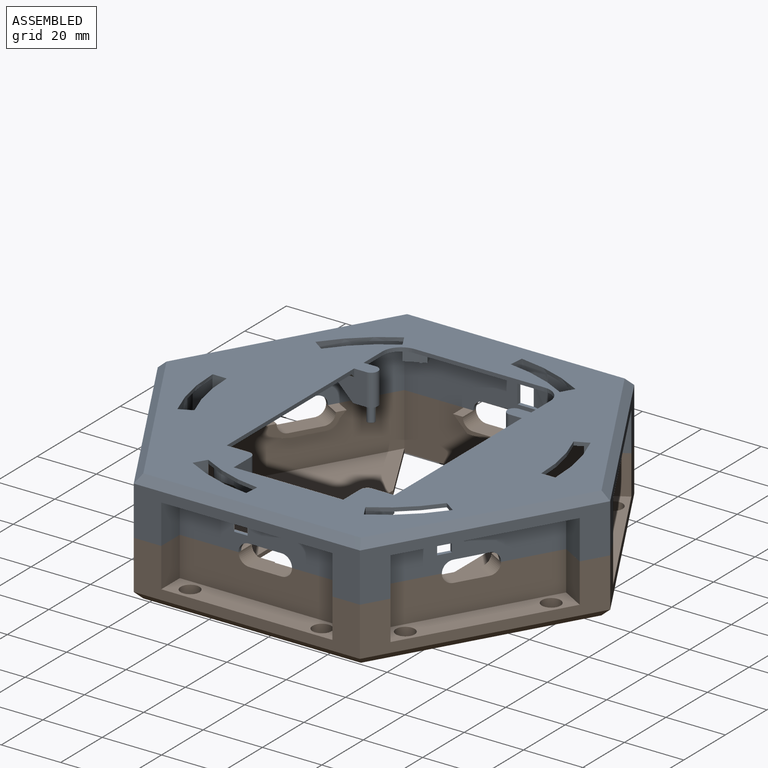
[diagram: assembled view]
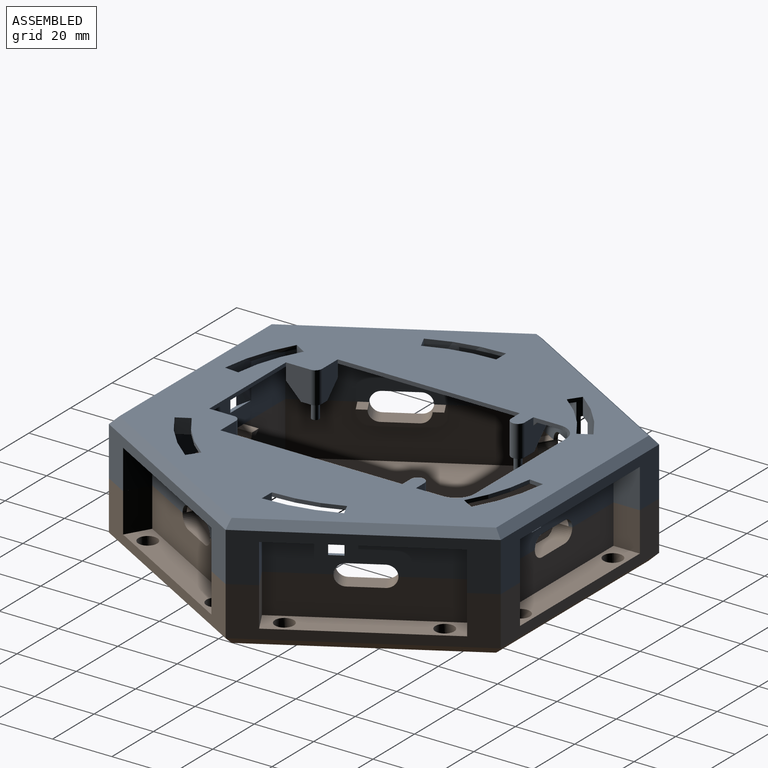
[diagram: assembled view, second angle]
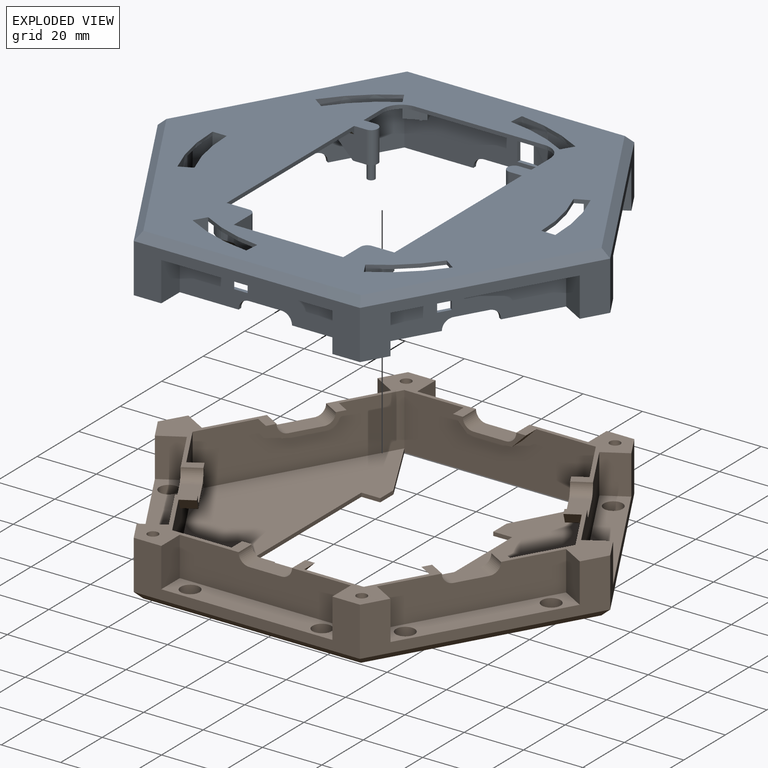
[diagram: exploded view]
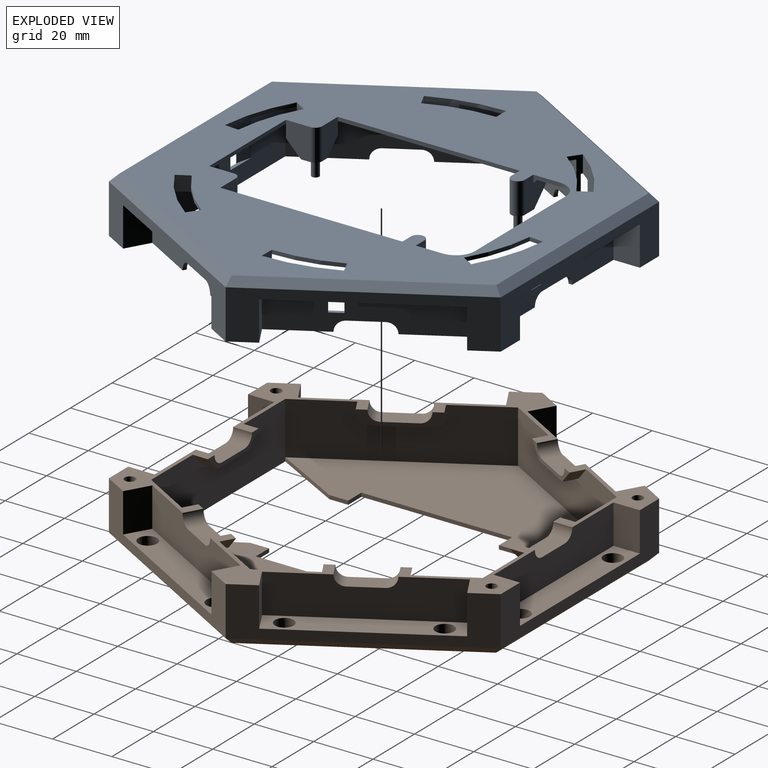
[diagram: exploded view, second angle]
ASSEMBLY  parts=2 mates=3
PART A: 228 faces, bbox 152.5x132.1x19.1 mm
  f0: plane 4.96x3.19mm, normal (0,0,-1), area 6.9mm2, adj f127,f128,f129,f221
  f1: plane 4.91x2.05mm, normal (0,0,-1), area 6.9mm2, adj f131,f132,f133,f218
  f2: plane 4.67x4.04mm, normal (0,0,-1), area 6.9mm2, adj f135,f136,f137,f215
  f3: plane 4.96x3.19mm, normal (0,0,-1), area 6.9mm2, adj f139,f140,f141,f212
  f4: plane 4.91x2.05mm, normal (0,0,-1), area 6.9mm2, adj f143,f144,f145,f209
  f5: plane 4.67x4.04mm, normal (0,0,-1), area 6.9mm2, adj f123,f124,f125,f206
  f6: plane 53.13x30.67mm, normal (-0.5,0.87,0), area 78.7mm2, adj f16,f21,f179,f184,f225
  f7: plane 7.86x4.54mm, normal (-0.5,0.87,0), area 12.3mm2, adj f16,f21,f167,f181,f224
  f8: plane 31.95x18.45mm, normal (0.87,0.5,0), area 46.9mm2, adj f16,f21,f174,f188
  f9: plane 53.13x30.67mm, normal (0.5,-0.87,0), area 78.7mm2, adj f16,f21,f169,f172,f227
  f10: plane 7.86x4.54mm, normal (0.5,-0.87,0), area 12.3mm2, adj f16,f21,f165,f170,f226
  f11: plane 41.53x23.35mm, normal (0,0,-1), area 173.6mm2, adj f25,f27,f33,f38,f64,f71,f72,f77
  f12: plane 35.97x30.29mm, normal (0,0,-1), area 173.6mm2, adj f24,f25,f27,f28,f37,f38,f58,f65
  f13: plane 35.97x30.29mm, normal (0,0,-1), area 179.7mm2, adj f24,f28,f36,f37,f51,f53,f59,f78
  f14: plane 41.53x23.35mm, normal (0,0,-1), area 173.6mm2, adj f23,f29,f35,f36,f45,f52,f53,f78
  f15: plane 35.97x30.29mm, normal (0,0,-1), area 173.6mm2, adj f22,f23,f26,f29,f34,f35,f39,f46
  f16: plane 129.05x111.76mm, normal (0,0,-1), area 4692.7mm2, adj f6,f7,f8,f9,f10,f26,f27,f28
  f17: plane 54.38x36.53mm, normal (0,0,-1), area 448.2mm2, adj f25,f38,f64,f65,f66,f68,f87,f88
  f18: plane 57.66x8.89mm, normal (0,0,-1), area 448.2mm2, adj f24,f37,f58,f59,f60,f62,f102,f103
  f19: plane 54.38x36.53mm, normal (0,0,-1), area 448.2mm2, adj f23,f35,f45,f46,f47,f49,f97,f98
  f20: plane 57.66x8.89mm, normal (0,0,-1), area 448.2mm2, adj f22,f34,f39,f40,f41,f43,f92,f93
  f21: plane 146.65x127mm, normal (0,0,1), area 8367.4mm2, adj f6,f7,f8,f9,f10,f87,f88,f89
  f22: plane 57.66x13.21mm, normal (0,-1,0), area 669.5mm2, adj f15,f20,f30,f39,f40,f92,f93,f96
  f23: plane 49.93x28.83mm, normal (-0.87,-0.5,0), area 669.5mm2, adj f14,f15,f19,f45,f46,f97,f98,f101
  f24: plane 57.66x13.21mm, normal (0,1,0), area 669.5mm2, adj f12,f13,f18,f58,f59,f102,f103,f106
  f25: plane 49.93x28.83mm, normal (0.87,0.5,0), area 669.5mm2, adj f11,f12,f17,f64,f65,f87,f88,f91
  f26: plane 64.52x17.78mm, normal (0,1,0), area 968.3mm2, adj f15,f16,f29,f30,f77,f92,f93,f96
  f27: plane 55.88x32.26mm, normal (-0.87,-0.5,0), area 968.3mm2, adj f11,f12,f16,f28,f77,f87,f88,f91
  f28: plane 64.52x17.78mm, normal (0,-1,0), area 968.3mm2, adj f12,f13,f16,f27,f78,f102,f103,f106
  f29: plane 55.88x32.26mm, normal (0.87,0.5,0), area 968.3mm2, adj f14,f15,f16,f26,f78,f97,f98,f101
  f30: plane 35.97x30.29mm, normal (0,0,-1), area 179.7mm2, adj f22,f26,f33,f34,f40,f70,f72,f77
  f31: plane 54.38x36.53mm, normal (0,0,-1), area 448.2mm2, adj f33,f70,f71,f72,f73,f75,f107,f108
  f32: plane 54.38x36.53mm, normal (0,0,-1), area 448.2mm2, adj f36,f51,f52,f53,f54,f56,f112,f113
  f33: plane 66.04x38.13mm, normal (0.87,-0.5,0), area 497.4mm2, adj f11,f30,f31,f34,f38,f70,f71,f119
  f34: plane 76.26x16.51mm, normal (0,-1,0), area 497.4mm2, adj f15,f20,f30,f33,f35,f39,f40,f121
  f35: plane 66.04x38.13mm, normal (-0.87,-0.5,0), area 497.4mm2, adj f14,f15,f19,f34,f36,f45,f46,f122
  f36: plane 66.04x38.13mm, normal (-0.87,0.5,0), area 497.4mm2, adj f13,f14,f32,f35,f37,f51,f52,f120
  f37: plane 76.26x16.51mm, normal (0,1,0), area 497.4mm2, adj f12,f13,f18,f36,f38,f58,f59,f118
  f38: plane 66.04x38.13mm, normal (0.87,0.5,0), area 497.4mm2, adj f11,f12,f17,f33,f37,f64,f65,f117
  f39: plane 13.21x8.89mm, normal (1,0,0), area 117.4mm2, adj f15,f20,f22,f34
  f40: plane 13.21x8.89mm, normal (-1,0,0), area 117.4mm2, adj f20,f22,f30,f34
  f41: cylinder r=3.16mm len=6.32mm, axis (0,0,1), area 63.1mm2, adj f20,f42
  f42: plane 6.32x6.32mm, normal (0,0,-1), area 31.4mm2, adj f41
  f43: cylinder r=3.16mm len=6.32mm, axis (0,0,1), area 63.1mm2, adj f20,f44
  f44: plane 6.32x6.32mm, normal (0,0,-1), area 31.4mm2, adj f43
  f45: plane 13.21x7.7mm, normal (0.5,-0.87,0), area 117.4mm2, adj f14,f19,f23,f35
  f46: plane 13.21x7.7mm, normal (-0.5,0.87,0), area 117.4mm2, adj f15,f19,f23,f35
  f47: cylinder r=3.16mm len=6.32mm, axis (0,0,1), area 63.1mm2, adj f19,f48
  f48: plane 6.32x6.32mm, normal (0,0,-1), area 31.4mm2, adj f47
  f49: cylinder r=3.16mm len=6.32mm, axis (0,0,1), area 63.1mm2, adj f19,f50
  f50: plane 6.32x6.32mm, normal (0,0,-1), area 31.4mm2, adj f49
  f51: plane 13.21x7.7mm, normal (-0.5,-0.87,0), area 117.4mm2, adj f13,f32,f36,f53
  f52: plane 13.21x7.7mm, normal (0.5,0.87,0), area 117.4mm2, adj f14,f32,f36,f53
  f53: plane 49.93x28.83mm, normal (-0.87,0.5,0), area 669.5mm2, adj f13,f14,f32,f51,f52,f112,f113,f116
  f54: cylinder r=3.16mm len=6.32mm, axis (0,0,1), area 63.1mm2, adj f32,f55
  f55: plane 6.32x6.32mm, normal (0,0,-1), area 31.4mm2, adj f54
  f56: cylinder r=3.16mm len=6.32mm, axis (0,0,1), area 63.1mm2, adj f32,f57
  f57: plane 6.32x6.32mm, normal (0,0,-1), area 31.4mm2, adj f56
  f58: plane 13.21x8.89mm, normal (-1,0,0), area 117.4mm2, adj f12,f18,f24,f37
  f59: plane 13.21x8.89mm, normal (1,0,0), area 117.4mm2, adj f13,f18,f24,f37
  f60: cylinder r=3.16mm len=6.32mm, axis (0,0,1), area 63.1mm2, adj f18,f61
  f61: plane 6.32x6.32mm, normal (0,0,-1), area 31.4mm2, adj f60
  f62: cylinder r=3.16mm len=6.32mm, axis (0,0,1), area 63.1mm2, adj f18,f63
  f63: plane 6.32x6.32mm, normal (0,0,-1), area 31.4mm2, adj f62
  f64: plane 13.21x7.7mm, normal (-0.5,0.87,0), area 117.4mm2, adj f11,f17,f25,f38
  f65: plane 13.21x7.7mm, normal (0.5,-0.87,0), area 117.4mm2, adj f12,f17,f25,f38
  f66: cylinder r=3.16mm len=6.32mm, axis (0,0,1), area 63.1mm2, adj f17,f67
  f67: plane 6.32x6.32mm, normal (0,0,-1), area 31.4mm2, adj f66
  f68: cylinder r=3.16mm len=6.32mm, axis (0,0,1), area 63.1mm2, adj f17,f69
  f69: plane 6.32x6.32mm, normal (0,0,-1), area 31.4mm2, adj f68
  f70: plane 13.21x7.7mm, normal (0.5,0.87,0), area 117.4mm2, adj f30,f31,f33,f72
  f71: plane 13.21x7.7mm, normal (-0.5,-0.87,0), area 117.4mm2, adj f11,f31,f33,f72
  f72: plane 49.93x28.83mm, normal (0.87,-0.5,0), area 669.5mm2, adj f11,f30,f31,f70,f71,f107,f108,f111
  f73: cylinder r=3.16mm len=6.32mm, axis (0,0,1), area 63.1mm2, adj f31,f74
  f74: plane 6.32x6.32mm, normal (0,0,-1), area 31.4mm2, adj f73
  f75: cylinder r=3.16mm len=6.32mm, axis (0,0,1), area 63.1mm2, adj f31,f76
  f76: plane 6.32x6.32mm, normal (0,0,-1), area 31.4mm2, adj f75
  f77: plane 55.88x32.26mm, normal (-0.87,0.5,0), area 968.3mm2, adj f11,f16,f26,f27,f30,f107,f108,f111
  f78: plane 55.88x32.26mm, normal (0.87,-0.5,0), area 968.3mm2, adj f13,f14,f16,f28,f29,f112,f113,f116
  f79: cylinder r=1.4mm len=12.7mm, axis (0,0,-1), area 111.5mm2, adj f14,f80
  f80: plane 2.79x2.79mm, normal (0,0,-1), area 6.1mm2, adj f79
  f81: cylinder r=1.4mm len=12.7mm, axis (0,0,-1), area 111.5mm2, adj f11,f82
  f82: plane 2.79x2.79mm, normal (0,0,-1), area 6.1mm2, adj f81
  f83: cylinder r=1.4mm len=12.7mm, axis (0,0,-1), area 111.5mm2, adj f12,f84
  f84: plane 2.79x2.79mm, normal (0,0,-1), area 6.1mm2, adj f83
  f85: cylinder r=1.4mm len=12.7mm, axis (0,0,-1), area 111.5mm2, adj f15,f86
  f86: plane 2.79x2.79mm, normal (0,0,-1), area 6.1mm2, adj f85
  f87: plane 13.21x4.32mm, normal (0.42,-0.91,0), area 24.2mm2, adj f16,f17,f21,f25,f27,f88,f90,f91
  f88: cylinder r=58.1mm len=24.2mm, axis (0,0,1), area 119mm2, adj f16,f17,f21,f25,f27,f87,f89,f91
  f89: plane 5.08x4.76mm, normal (0.01,1,0), area 24.2mm2, adj f21,f88,f90,f131,f132,f134
  f90: cylinder r=53.34mm len=22.14mm, axis (0,0,1), area 28.9mm2, adj f16,f21,f87,f89
  f91: plane 9.26x5.04mm, normal (0,0,1), area 9.5mm2, adj f25,f27,f87,f88
  f92: plane 13.21x4.75mm, normal (-1,0.09,0), area 24.2mm2, adj f16,f20,f21,f22,f26,f93,f95,f96
  f93: cylinder r=58.1mm len=23.48mm, axis (0,0,1), area 119mm2, adj f16,f20,f21,f22,f26,f92,f94,f96
  f94: plane 5.08x4.1mm, normal (0.86,-0.51,0), area 24.2mm2, adj f21,f93,f95,f123,f124,f126
  f95: cylinder r=53.34mm len=21.48mm, axis (0,0,1), area 28.9mm2, adj f16,f21,f92,f94
  f96: plane 10.07x1.27mm, normal (0,0,1), area 9.5mm2, adj f22,f26,f92,f93
  f97: plane 13.21x4.32mm, normal (-0.42,0.91,0), area 24.2mm2, adj f16,f19,f21,f23,f29,f98,f100,f101
  f98: cylinder r=58.1mm len=24.2mm, axis (0,0,1), area 119mm2, adj f16,f19,f21,f23,f29,f97,f99,f101
  f99: plane 5.08x4.76mm, normal (-0.01,-1,0), area 24.2mm2, adj f21,f98,f100,f143,f144,f146
  f100: cylinder r=53.34mm len=22.14mm, axis (0,0,1), area 28.9mm2, adj f16,f21,f97,f99
  f101: plane 9.26x5.04mm, normal (0,0,1), area 9.5mm2, adj f23,f29,f97,f98
  f102: plane 13.21x4.75mm, normal (1,-0.09,0), area 24.2mm2, adj f16,f18,f21,f24,f28,f103,f105,f106
  f103: cylinder r=58.1mm len=23.48mm, axis (0,0,1), area 119mm2, adj f16,f18,f21,f24,f28,f102,f104,f106
  f104: plane 5.08x4.1mm, normal (-0.86,0.51,0), area 24.2mm2, adj f21,f103,f105,f135,f136,f138
  f105: cylinder r=53.34mm len=21.48mm, axis (0,0,1), area 28.9mm2, adj f16,f21,f102,f104
  f106: plane 10.07x1.27mm, normal (0,0,1), area 9.5mm2, adj f24,f28,f102,f103
  f107: cylinder r=58.1mm len=18.43mm, axis (0,0,1), area 119mm2, adj f16,f21,f31,f72,f77,f108,f109,f111
  f108: plane 13.21x3.9mm, normal (-0.57,-0.82,0), area 24.2mm2, adj f16,f21,f31,f72,f77,f107,f110,f111
  f109: plane 5.08x4.15mm, normal (0.87,0.49,0), area 24.2mm2, adj f21,f107,f110,f127,f128,f130
  f110: cylinder r=53.34mm len=16.87mm, axis (0,0,1), area 28.9mm2, adj f16,f21,f108,f109
  f111: plane 8.72x6.08mm, normal (0,0,1), area 9.5mm2, adj f72,f77,f107,f108
  f112: cylinder r=58.1mm len=18.43mm, axis (0,0,1), area 119mm2, adj f16,f21,f32,f53,f78,f113,f114,f116
  f113: plane 13.21x3.9mm, normal (0.57,0.82,0), area 24.2mm2, adj f16,f21,f32,f53,f78,f112,f115,f116
  f114: plane 5.08x4.15mm, normal (-0.87,-0.49,0), area 24.2mm2, adj f21,f112,f115,f139,f140,f142
  f115: cylinder r=53.34mm len=16.87mm, axis (0,0,1), area 28.9mm2, adj f16,f21,f113,f114
  f116: plane 8.72x6.08mm, normal (0,0,1), area 9.5mm2, adj f53,f78,f112,f113
  f117: plane 66.04x39.59mm, normal (0.61,0.35,0.71), area 268.7mm2, adj f21,f38,f118,f119
  f118: plane 76.26x2.54mm, normal (0,0.71,0.71), area 268.7mm2, adj f21,f37,f117,f120
  f119: plane 66.04x39.59mm, normal (0.61,-0.35,0.71), area 268.7mm2, adj f21,f33,f117,f121
  f120: plane 66.04x39.59mm, normal (-0.61,0.35,0.71), area 268.7mm2, adj f21,f36,f118,f122
  f121: plane 76.26x2.54mm, normal (0,-0.71,0.71), area 268.7mm2, adj f21,f34,f119,f122
  f122: plane 66.04x39.59mm, normal (-0.61,-0.35,0.71), area 268.7mm2, adj f21,f35,f120,f121
  f123: cylinder r=58.1mm len=6.28mm, axis (0,0,1), area 29.2mm2, adj f5,f16,f94,f125,f126,f206,f207,f208
  f124: cylinder r=53.34mm len=5.77mm, axis (0,0,1), area 26.8mm2, adj f5,f16,f94,f125,f126,f206,f207,f208
  f125: plane 3.81x3.75mm, normal (-0.79,0.62,0), area 18.1mm2, adj f5,f16,f123,f124
  f126: plane 6.67x6.64mm, normal (0,0,-1), area 23.2mm2, adj f94,f123,f124,f207
  f127: cylinder r=58.1mm len=6.85mm, axis (0,0,1), area 29.2mm2, adj f0,f16,f109,f129,f130,f221,f222,f223
  f128: cylinder r=53.34mm len=6.28mm, axis (0,0,1), area 26.8mm2, adj f0,f16,f109,f129,f130,f221,f222,f223
  f129: plane 4.42x3.81mm, normal (-0.93,-0.37,0), area 18.1mm2, adj f0,f16,f127,f128
  f130: plane 6.49x6.45mm, normal (0,0,-1), area 23.2mm2, adj f109,f127,f128,f222
  f131: cylinder r=58.1mm len=7.58mm, axis (0,0,1), area 29.2mm2, adj f1,f16,f89,f133,f134,f218,f219,f220
  f132: cylinder r=53.34mm len=6.96mm, axis (0,0,1), area 26.8mm2, adj f1,f16,f89,f133,f134,f218,f219,f220
  f133: plane 4.72x3.81mm, normal (-0.14,-0.99,0), area 18.1mm2, adj f1,f16,f131,f132
  f134: plane 5.1x5.01mm, normal (0,0,-1), area 23.2mm2, adj f89,f131,f132,f219
  f135: cylinder r=58.1mm len=6.28mm, axis (0,0,1), area 29.2mm2, adj f2,f16,f104,f137,f138,f215,f216,f217
  f136: cylinder r=53.34mm len=5.77mm, axis (0,0,1), area 26.8mm2, adj f2,f16,f104,f137,f138,f215,f216,f217
  f137: plane 3.81x3.75mm, normal (0.79,-0.62,0), area 18.1mm2, adj f2,f16,f135,f136
  f138: plane 6.67x6.64mm, normal (0,0,-1), area 23.2mm2, adj f104,f135,f136,f216
  f139: cylinder r=58.1mm len=6.85mm, axis (0,0,1), area 29.2mm2, adj f3,f16,f114,f141,f142,f212,f213,f214
  f140: cylinder r=53.34mm len=6.28mm, axis (0,0,1), area 26.8mm2, adj f3,f16,f114,f141,f142,f212,f213,f214
  f141: plane 4.42x3.81mm, normal (0.93,0.37,0), area 18.1mm2, adj f3,f16,f139,f140
  f142: plane 6.49x6.45mm, normal (0,0,-1), area 23.2mm2, adj f114,f139,f140,f213
  f143: cylinder r=58.1mm len=7.58mm, axis (0,0,1), area 29.2mm2, adj f4,f16,f99,f145,f146,f209,f210,f211
  f144: cylinder r=53.34mm len=6.96mm, axis (0,0,1), area 26.8mm2, adj f4,f16,f99,f145,f146,f209,f210,f211
  f145: plane 4.72x3.81mm, normal (0.14,0.99,0), area 18.1mm2, adj f4,f16,f143,f144
  f146: plane 5.1x5.01mm, normal (0,0,-1), area 23.2mm2, adj f99,f143,f144,f210
  f147: plane 10.92x1.27mm, normal (0,0,-1), area 13.9mm2, adj f22,f26,f148,f149
  f148: cylinder r=3.56mm len=3.56mm, axis (0,-1,0), area 7.1mm2, adj f22,f26,f30,f147
  f149: cylinder r=3.56mm len=3.56mm, axis (0,-1,0), area 7.1mm2, adj f15,f22,f26,f147
  f150: plane 10.09x6.56mm, normal (0,0,-1), area 13.9mm2, adj f23,f29,f151,f152
  f151: cylinder r=3.56mm len=3.71mm, axis (-0.87,-0.5,0), area 7.1mm2, adj f15,f23,f29,f150
  f152: cylinder r=3.56mm len=3.71mm, axis (-0.87,-0.5,0), area 7.1mm2, adj f14,f23,f29,f150
  f153: cylinder r=3.56mm len=3.71mm, axis (-0.87,0.5,0), area 7.1mm2, adj f14,f53,f78,f155
  f154: cylinder r=3.56mm len=3.71mm, axis (-0.87,0.5,0), area 7.1mm2, adj f13,f53,f78,f155
  f155: plane 10.09x6.56mm, normal (0,0,-1), area 13.9mm2, adj f53,f78,f153,f154
  f156: plane 10.92x1.27mm, normal (0,0,-1), area 13.9mm2, adj f24,f28,f157,f158
  f157: cylinder r=3.56mm len=3.56mm, axis (0,1,0), area 7.1mm2, adj f13,f24,f28,f156
  f158: cylinder r=3.56mm len=3.56mm, axis (0,1,0), area 7.1mm2, adj f12,f24,f28,f156
  f159: plane 10.09x6.56mm, normal (0,0,-1), area 13.9mm2, adj f25,f27,f160,f161
  f160: cylinder r=3.56mm len=3.71mm, axis (0.87,0.5,0), area 7.1mm2, adj f12,f25,f27,f159
  f161: cylinder r=3.56mm len=3.71mm, axis (0.87,0.5,0), area 7.1mm2, adj f11,f25,f27,f159
  f162: cylinder r=3.56mm len=3.71mm, axis (0.87,-0.5,0), area 7.1mm2, adj f11,f72,f77,f164
  f163: cylinder r=3.56mm len=3.71mm, axis (0.87,-0.5,0), area 7.1mm2, adj f30,f72,f77,f164
  f164: plane 10.09x6.56mm, normal (0,0,-1), area 13.9mm2, adj f72,f77,f162,f163
  f165: cylinder r=6.35mm len=8.67mm, axis (0,0,1), area 12.7mm2, adj f10,f16,f21,f166
  f166: plane 37.95x21.91mm, normal (-0.87,-0.5,0), area 55.6mm2, adj f16,f21,f165,f167
  f167: cylinder r=6.35mm len=8.67mm, axis (0,0,1), area 12.7mm2, adj f7,f16,f21,f166
  f168: cylinder r=2.29mm len=10.67mm, axis (0,0,1), area 76.6mm2, adj f21,f169,f170,f171
  f169: plane 10.94x10.67mm, normal (-0.87,-0.5,0), area 80.2mm2, adj f9,f21,f168,f171,f191,f227
  f170: plane 10.94x10.67mm, normal (0.87,0.5,0), area 80.2mm2, adj f10,f21,f168,f171,f191,f226
  f171: plane 7.33x6.52mm, normal (0,0,-1), area 23.8mm2, adj f168,f169,f170,f191,f194
  f172: plane 10.67x6.52mm, normal (0.87,0.5,0), area 67.4mm2, adj f9,f21,f173,f177,f178,f202
  f173: cylinder r=2.29mm len=10.67mm, axis (0,0,1), area 38.3mm2, adj f21,f172,f174,f178
  f174: plane 10.67x7.2mm, normal (0.5,-0.87,0), area 75.8mm2, adj f8,f21,f173,f175,f178,f200
  f175: plane 4.32x3mm, normal (-0.87,-0.5,0), area 14.9mm2, adj f16,f174,f176,f200
  f176: cylinder r=6.35mm len=8.67mm, axis (0,0,1), area 43.1mm2, adj f16,f175,f177,f201
  f177: plane 4.32x3.68mm, normal (-0.5,0.87,0), area 18.3mm2, adj f16,f172,f176,f202
  f178: plane 6.86x5.84mm, normal (0,0,-1), area 19.6mm2, adj f172,f173,f174,f198,f200,f201,f202
  f179: plane 10.94x10.67mm, normal (-0.87,-0.5,0), area 80.2mm2, adj f6,f21,f180,f182,f190,f225
  f180: cylinder r=2.29mm len=10.67mm, axis (0,0,1), area 76.6mm2, adj f21,f179,f181,f182
  f181: plane 10.94x10.67mm, normal (0.87,0.5,0), area 80.2mm2, adj f7,f21,f180,f182,f190,f224
  f182: plane 7.33x6.52mm, normal (0,0,-1), area 23.8mm2, adj f179,f180,f181,f190,f192
  f183: cylinder r=2.29mm len=10.67mm, axis (0,0,1), area 38.3mm2, adj f21,f184,f188,f189
  f184: plane 10.67x6.52mm, normal (0.87,0.5,0), area 67.4mm2, adj f6,f21,f183,f185,f189,f205
  f185: plane 4.32x3.68mm, normal (0.5,-0.87,0), area 18.3mm2, adj f16,f184,f186,f205
  f186: cylinder r=6.35mm len=8.67mm, axis (0,0,1), area 43.1mm2, adj f16,f185,f187,f204
  f187: plane 4.32x3mm, normal (-0.87,-0.5,0), area 14.9mm2, adj f16,f186,f188,f203
  f188: plane 10.67x7.2mm, normal (-0.5,0.87,0), area 75.8mm2, adj f8,f21,f183,f187,f189,f203
  f189: plane 7.14x5.55mm, normal (0,0,-1), area 19.6mm2, adj f183,f184,f188,f196,f203,f204,f205
  f190: plane 11.06x9.76mm, normal (0.35,-0.61,-0.71), area 63.1mm2, adj f16,f179,f181,f182,f224,f225
  f191: plane 11.06x9.76mm, normal (-0.35,0.61,-0.71), area 63mm2, adj f16,f169,f170,f171,f226,f227
  f192: cylinder r=1.27mm len=5.08mm, axis (0,0,1), area 40.5mm2, adj f182,f193
  f193: plane 2.54x2.54mm, normal (0,0,-1), area 5.1mm2, adj f192
  f194: cylinder r=1.27mm len=5.08mm, axis (0,0,1), area 40.5mm2, adj f171,f195
  f195: plane 2.54x2.54mm, normal (0,0,-1), area 5.1mm2, adj f194
  f196: cylinder r=1.27mm len=5.08mm, axis (0,0,1), area 40.5mm2, adj f189,f197
  f197: plane 2.54x2.54mm, normal (0,0,-1), area 5.1mm2, adj f196
  f198: cylinder r=1.27mm len=5.08mm, axis (0,0,1), area 40.5mm2, adj f178,f199
  f199: plane 2.54x2.54mm, normal (0,0,-1), area 5.1mm2, adj f198
  f200: plane 6.13x5.54mm, normal (-0.61,-0.35,-0.71), area 24.9mm2, adj f174,f175,f178,f201
  f201: cone r=1.27mm half-angle=45deg, axis (0,0,1), area 43mm2, adj f176,f178,f200,f202
  f202: plane 6.52x6.22mm, normal (-0.35,0.61,-0.71), area 30.5mm2, adj f172,f177,f178,f201
  f203: plane 6.13x5.54mm, normal (-0.61,-0.35,-0.71), area 24.9mm2, adj f187,f188,f189,f204
  f204: cone r=1.27mm half-angle=45deg, axis (0,0,1), area 43mm2, adj f186,f189,f203,f205
  f205: plane 6.52x6.22mm, normal (0.35,-0.61,-0.71), area 30.5mm2, adj f184,f185,f189,f204
  f206: plane 3.83x2.83mm, normal (-0.8,0.59,0), area 1.2mm2, adj f5,f123,f124,f208
  f207: plane 3.88x2.77mm, normal (0.81,-0.58,0), area 1.2mm2, adj f123,f124,f126,f208
  f208: plane 4.42x3.59mm, normal (0,0,-1), area 4.6mm2, adj f123,f124,f206,f207
  f209: plane 4.73x0.54mm, normal (0.11,0.99,0), area 1.2mm2, adj f4,f143,f144,f211
  f210: plane 4.74x0.46mm, normal (-0.1,-1,0), area 1.2mm2, adj f143,f144,f146,f211
  f211: plane 4.84x1.47mm, normal (0,0,-1), area 4.6mm2, adj f143,f144,f209,f210
  f212: plane 4.37x1.9mm, normal (0.92,0.4,0), area 1.2mm2, adj f3,f139,f140,f214
  f213: plane 4.33x1.98mm, normal (-0.91,-0.41,0), area 1.2mm2, adj f139,f140,f142,f214
  f214: plane 4.75x2.83mm, normal (0,0,-1), area 4.6mm2, adj f139,f140,f212,f213
  f215: plane 3.83x2.83mm, normal (0.8,-0.59,0), area 1.2mm2, adj f2,f135,f136,f217
  f216: plane 3.88x2.77mm, normal (-0.81,0.58,0), area 1.2mm2, adj f135,f136,f138,f217
  f217: plane 4.42x3.59mm, normal (0,0,-1), area 4.6mm2, adj f135,f136,f215,f216
  f218: plane 4.73x0.54mm, normal (-0.11,-0.99,0), area 1.2mm2, adj f1,f131,f132,f220
  f219: plane 4.74x0.46mm, normal (0.1,1,0), area 1.2mm2, adj f131,f132,f134,f220
  f220: plane 4.84x1.47mm, normal (0,0,-1), area 4.6mm2, adj f131,f132,f218,f219
  f221: plane 4.37x1.9mm, normal (-0.92,-0.4,0), area 1.2mm2, adj f0,f127,f128,f223
  f222: plane 4.33x1.98mm, normal (0.91,0.41,0), area 1.2mm2, adj f127,f128,f130,f223
  f223: plane 4.75x2.83mm, normal (0,0,-1), area 4.6mm2, adj f127,f128,f221,f222
  f224: plane 8.47x5.99mm, normal (0.61,0.35,-0.71), area 16.4mm2, adj f7,f16,f181,f190
  f225: plane 9.1x5.35mm, normal (-0.61,-0.35,-0.71), area 16.4mm2, adj f6,f16,f179,f190
  f226: plane 9.1x5.35mm, normal (0.61,0.35,-0.71), area 16.4mm2, adj f10,f16,f170,f191
  f227: plane 8.47x5.99mm, normal (-0.61,-0.35,-0.71), area 16.4mm2, adj f9,f16,f169,f191
PART B: 135 faces, bbox 152.5x132.1x19.1 mm
  f0: plane 6.35x1.27mm, normal (1,0,0), area 8.1mm2, adj f3,f4,f102,f132
  f1: plane 6.35x1.27mm, normal (-1,0,0), area 8.1mm2, adj f2,f3,f103,f134
  f2: plane 111.76x45.47mm, normal (0,0,1), area 2638mm2, adj f1,f86,f87,f103,f104,f105,f106,f131
  f3: plane 146.65x127mm, normal (0,0,-1), area 8387.6mm2, adj f0,f1,f85,f88,f89,f90,f91,f92
  f4: plane 111.76x45.47mm, normal (0,0,1), area 2638mm2, adj f0,f83,f84,f99,f100,f101,f102,f132
  f5: plane 35.97x32.83mm, normal (0,0,1), area 203mm2, adj f25,f27,f59,f60,f74,f76,f77,f82
  f6: plane 35.97x32.83mm, normal (0,0,1), area 203mm2, adj f22,f24,f71,f73,f74,f75,f77,f78
  f7: plane 41.53x27.75mm, normal (0,0,1), area 212.9mm2, adj f19,f21,f68,f70,f71,f72,f78,f79
  f8: plane 35.97x32.83mm, normal (0,0,1), area 203mm2, adj f16,f18,f65,f67,f68,f69,f79,f80
  f9: plane 35.97x32.83mm, normal (0,0,1), area 203mm2, adj f13,f14,f62,f64,f65,f66,f80,f81
  f10: plane 41.53x27.75mm, normal (0,0,1), area 212.9mm2, adj f12,f28,f59,f61,f62,f63,f81,f82
  f11: plane 12.63x10.96mm, normal (0,0,1), area 69.4mm2, adj f12,f13,f62,f118
  f12: cylinder r=3.56mm len=7.28mm, axis (-0.87,-0.5,0), area 35.5mm2, adj f10,f11,f62,f118
  f13: cylinder r=3.56mm len=7.28mm, axis (-0.87,-0.5,0), area 35.5mm2, adj f9,f11,f62,f118
  f14: cylinder r=3.56mm len=6.35mm, axis (0,-1,0), area 35.5mm2, adj f9,f15,f65,f122
  f15: plane 10.92x6.35mm, normal (0,0,1), area 69.4mm2, adj f14,f16,f65,f122
  f16: cylinder r=3.56mm len=6.35mm, axis (0,-1,0), area 35.5mm2, adj f8,f15,f65,f122
  f17: plane 12.63x10.96mm, normal (0,0,1), area 69.4mm2, adj f18,f19,f68,f126
  f18: cylinder r=3.56mm len=7.28mm, axis (0.87,-0.5,0), area 35.5mm2, adj f8,f17,f68,f126
  f19: cylinder r=3.56mm len=7.28mm, axis (0.87,-0.5,0), area 35.5mm2, adj f7,f17,f68,f126
  f20: plane 12.63x10.96mm, normal (0,0,1), area 69.4mm2, adj f21,f22,f71,f130
  f21: cylinder r=3.56mm len=7.28mm, axis (0.87,0.5,0), area 35.5mm2, adj f7,f20,f71,f130
  f22: cylinder r=3.56mm len=7.28mm, axis (0.87,0.5,0), area 35.5mm2, adj f6,f20,f71,f130
  f23: plane 10.92x6.35mm, normal (0,0,1), area 69.4mm2, adj f24,f25,f74,f110
  f24: cylinder r=3.56mm len=6.35mm, axis (0,1,0), area 35.5mm2, adj f6,f23,f74,f110
  f25: cylinder r=3.56mm len=6.35mm, axis (0,1,0), area 35.5mm2, adj f5,f23,f74,f110
  f26: plane 12.63x10.96mm, normal (0,0,1), area 69.4mm2, adj f27,f28,f59,f114
  f27: cylinder r=3.56mm len=7.28mm, axis (-0.87,0.5,0), area 35.5mm2, adj f5,f26,f59,f114
  f28: cylinder r=3.56mm len=7.28mm, axis (-0.87,0.5,0), area 35.5mm2, adj f10,f26,f59,f114
  f29: plane 6.32x6.32mm, normal (0,0,1), area 31.4mm2, adj f41
  f30: plane 6.32x6.32mm, normal (0,0,1), area 31.4mm2, adj f42
  f31: plane 6.32x6.32mm, normal (0,0,1), area 31.4mm2, adj f43
  f32: plane 6.32x6.32mm, normal (0,0,1), area 31.4mm2, adj f44
  f33: plane 6.32x6.32mm, normal (0,0,1), area 31.4mm2, adj f45
  f34: plane 6.32x6.32mm, normal (0,0,1), area 31.4mm2, adj f46
  f35: plane 6.32x6.32mm, normal (0,0,1), area 31.4mm2, adj f47
  f36: plane 6.32x6.32mm, normal (0,0,1), area 31.4mm2, adj f48
  f37: plane 6.32x6.32mm, normal (0,0,1), area 31.4mm2, adj f49
  f38: plane 6.32x6.32mm, normal (0,0,1), area 31.4mm2, adj f50
  f39: plane 6.32x6.32mm, normal (0,0,1), area 31.4mm2, adj f51
  f40: plane 6.32x6.32mm, normal (0,0,1), area 31.4mm2, adj f52
  f41: cylinder r=3.16mm len=6.32mm, axis (0,0,1), area 63.1mm2, adj f29,f53
  f42: cylinder r=3.16mm len=6.32mm, axis (0,0,1), area 63.1mm2, adj f30,f53
  f43: cylinder r=3.16mm len=6.32mm, axis (0,0,1), area 63.1mm2, adj f31,f54
  f44: cylinder r=3.16mm len=6.32mm, axis (0,0,1), area 63.1mm2, adj f32,f54
  f45: cylinder r=3.16mm len=6.32mm, axis (0,0,1), area 63.1mm2, adj f33,f55
  f46: cylinder r=3.16mm len=6.32mm, axis (0,0,1), area 63.1mm2, adj f34,f55
  f47: cylinder r=3.16mm len=6.32mm, axis (0,0,1), area 63.1mm2, adj f35,f56
  f48: cylinder r=3.16mm len=6.32mm, axis (0,0,1), area 63.1mm2, adj f36,f56
  f49: cylinder r=3.16mm len=6.32mm, axis (0,0,1), area 63.1mm2, adj f37,f57
  f50: cylinder r=3.16mm len=6.32mm, axis (0,0,1), area 63.1mm2, adj f38,f57
  f51: cylinder r=3.16mm len=6.32mm, axis (0,0,1), area 63.1mm2, adj f39,f58
  f52: cylinder r=3.16mm len=6.32mm, axis (0,0,1), area 63.1mm2, adj f40,f58
  f53: plane 54.38x36.53mm, normal (0,0,1), area 449.7mm2, adj f41,f42,f62,f63,f64,f81
  f54: plane 57.66x8.89mm, normal (0,0,1), area 449.7mm2, adj f43,f44,f65,f66,f67,f80
  f55: plane 54.38x36.53mm, normal (0,0,1), area 449.7mm2, adj f45,f46,f68,f69,f70,f79
  f56: plane 54.38x36.53mm, normal (0,0,1), area 449.7mm2, adj f47,f48,f71,f72,f73,f78
  f57: plane 57.66x8.89mm, normal (0,0,1), area 449.7mm2, adj f49,f50,f74,f75,f76,f77
  f58: plane 54.38x36.53mm, normal (0,0,1), area 449.7mm2, adj f51,f52,f59,f60,f61,f82
  f59: plane 49.93x28.83mm, normal (-0.87,0.5,0), area 702.8mm2, adj f5,f10,f26,f27,f28,f58,f60,f61
  f60: plane 13.21x7.7mm, normal (-0.5,-0.87,0), area 117.4mm2, adj f5,f58,f59,f82
  f61: plane 13.21x7.7mm, normal (0.5,0.87,0), area 117.4mm2, adj f10,f58,f59,f82
  f62: plane 49.93x28.83mm, normal (-0.87,-0.5,0), area 702.8mm2, adj f9,f10,f11,f12,f13,f53,f63,f64
  f63: plane 13.21x7.7mm, normal (0.5,-0.87,0), area 117.4mm2, adj f10,f53,f62,f81
  f64: plane 13.21x7.7mm, normal (-0.5,0.87,0), area 117.4mm2, adj f9,f53,f62,f81
  f65: plane 57.66x13.21mm, normal (0,-1,0), area 702.8mm2, adj f8,f9,f14,f15,f16,f54,f66,f67
  f66: plane 13.21x8.89mm, normal (1,0,0), area 117.4mm2, adj f9,f54,f65,f80
  f67: plane 13.21x8.89mm, normal (-1,0,0), area 117.4mm2, adj f8,f54,f65,f80
  f68: plane 49.93x28.83mm, normal (0.87,-0.5,0), area 702.8mm2, adj f7,f8,f17,f18,f19,f55,f69,f70
  f69: plane 13.21x7.7mm, normal (0.5,0.87,0), area 117.4mm2, adj f8,f55,f68,f79
  f70: plane 13.21x7.7mm, normal (-0.5,-0.87,0), area 117.4mm2, adj f7,f55,f68,f79
  f71: plane 49.93x28.83mm, normal (0.87,0.5,0), area 702.8mm2, adj f6,f7,f20,f21,f22,f56,f72,f73
  f72: plane 13.21x7.7mm, normal (-0.5,0.87,0), area 117.4mm2, adj f7,f56,f71,f78
  f73: plane 13.21x7.7mm, normal (0.5,-0.87,0), area 117.4mm2, adj f6,f56,f71,f78
  f74: plane 57.66x13.21mm, normal (0,1,0), area 702.8mm2, adj f5,f6,f23,f24,f25,f57,f75,f76
  f75: plane 13.21x8.89mm, normal (-1,0,0), area 117.4mm2, adj f6,f57,f74,f77
  f76: plane 13.21x8.89mm, normal (1,0,0), area 117.4mm2, adj f5,f57,f74,f77
  f77: plane 76.26x16.51mm, normal (0,1,0), area 497.4mm2, adj f5,f6,f57,f75,f76,f78,f82,f97
  f78: plane 66.04x38.13mm, normal (0.87,0.5,0), area 497.4mm2, adj f6,f7,f56,f72,f73,f77,f79,f95
  f79: plane 66.04x38.13mm, normal (0.87,-0.5,0), area 497.4mm2, adj f7,f8,f55,f69,f70,f78,f80,f93
  f80: plane 76.26x16.51mm, normal (0,-1,0), area 497.4mm2, adj f8,f9,f54,f66,f67,f79,f81,f94
  f81: plane 66.04x38.13mm, normal (-0.87,-0.5,0), area 497.4mm2, adj f9,f10,f53,f63,f64,f80,f82,f96
  f82: plane 66.04x38.13mm, normal (-0.87,0.5,0), area 497.4mm2, adj f5,f10,f58,f60,f61,f77,f81,f98
  f83: plane 55.88x32.26mm, normal (0.87,-0.5,0), area 1052mm2, adj f4,f5,f10,f84,f88,f111,f112,f113
  f84: plane 55.88x32.26mm, normal (0.87,0.5,0), area 1052mm2, adj f4,f9,f10,f83,f85,f115,f116,f117
  f85: plane 64.52x19.05mm, normal (0,1,0), area 1133.9mm2, adj f3,f8,f9,f84,f86,f119,f120,f121
  f86: plane 55.88x32.26mm, normal (-0.87,0.5,0), area 1052mm2, adj f2,f7,f8,f85,f87,f123,f124,f125
  f87: plane 55.88x32.26mm, normal (-0.87,-0.5,0), area 1052mm2, adj f2,f6,f7,f86,f88,f127,f128,f129
  f88: plane 64.52x19.05mm, normal (0,-1,0), area 1133.9mm2, adj f3,f5,f6,f83,f87,f107,f108,f109
  f89: cylinder r=1.78mm len=19.05mm, axis (0,0,1), area 212.8mm2, adj f3,f6
  f90: cylinder r=1.78mm len=19.05mm, axis (0,0,1), area 212.8mm2, adj f3,f9
  f91: cylinder r=1.78mm len=19.05mm, axis (0,0,1), area 212.8mm2, adj f3,f8
  f92: cylinder r=1.78mm len=19.05mm, axis (0,0,1), area 212.8mm2, adj f3,f5
  f93: plane 66.04x39.59mm, normal (0.61,-0.35,-0.71), area 268.7mm2, adj f3,f79,f94,f95
  f94: plane 76.26x2.54mm, normal (0,-0.71,-0.71), area 268.7mm2, adj f3,f80,f93,f96
  f95: plane 66.04x39.59mm, normal (0.61,0.35,-0.71), area 268.7mm2, adj f3,f78,f93,f97
  f96: plane 66.04x39.59mm, normal (-0.61,-0.35,-0.71), area 268.7mm2, adj f3,f81,f94,f98
  f97: plane 76.26x2.54mm, normal (0,0.71,-0.71), area 268.7mm2, adj f3,f77,f95,f98
  f98: plane 66.04x39.59mm, normal (-0.61,0.35,-0.71), area 268.7mm2, adj f3,f82,f96,f97
  f99: plane 6.35x1.27mm, normal (1,0,0), area 8.1mm2, adj f3,f4,f100,f133
  f100: plane 6.35x1.27mm, normal (0,-1,0), area 8.1mm2, adj f3,f4,f99,f101
  f101: plane 50.8x1.27mm, normal (1,0,0), area 64.5mm2, adj f3,f4,f100,f102
  f102: plane 6.35x1.27mm, normal (0,1,0), area 8.1mm2, adj f0,f3,f4,f101
  f103: plane 6.35x1.27mm, normal (0,1,0), area 8.1mm2, adj f1,f2,f3,f104
  f104: plane 50.8x1.27mm, normal (-1,0,0), area 64.5mm2, adj f2,f3,f103,f105
  f105: plane 6.35x1.27mm, normal (0,-1,0), area 8.1mm2, adj f2,f3,f104,f106
  f106: plane 6.35x1.27mm, normal (-1,0,0), area 8.1mm2, adj f2,f3,f105,f131
  f107: plane 14.92x5.08mm, normal (0,0,-1), area 75.8mm2, adj f88,f108,f109,f110
  f108: plane 5.08x4.83mm, normal (0.71,0,-0.71), area 34.7mm2, adj f6,f88,f107,f110
  f109: plane 5.08x4.83mm, normal (-0.71,0,-0.71), area 34.7mm2, adj f5,f88,f107,f110
  f110: plane 24.57x4.83mm, normal (0,-1,0), area 36.6mm2, adj f5,f6,f23,f24,f25,f107,f108,f109
  f111: plane 15.46x11.86mm, normal (0,0,-1), area 75.8mm2, adj f83,f112,f113,f114
  f112: plane 6.81x6.72mm, normal (0.35,0.61,-0.71), area 34.7mm2, adj f5,f83,f111,f114
  f113: plane 6.81x6.72mm, normal (-0.35,-0.61,-0.71), area 34.7mm2, adj f10,f83,f111,f114
  f114: plane 21.28x12.29mm, normal (0.87,-0.5,0), area 36.6mm2, adj f5,f10,f26,f27,f28,f111,f112,f113
  f115: plane 15.46x11.86mm, normal (0,0,-1), area 75.8mm2, adj f84,f116,f117,f118
  f116: plane 6.81x6.72mm, normal (-0.35,0.61,-0.71), area 34.7mm2, adj f10,f84,f115,f118
  f117: plane 6.81x6.72mm, normal (0.35,-0.61,-0.71), area 34.7mm2, adj f9,f84,f115,f118
  f118: plane 21.28x12.29mm, normal (0.87,0.5,0), area 36.6mm2, adj f9,f10,f11,f12,f13,f115,f116,f117
  f119: plane 14.92x5.08mm, normal (0,0,-1), area 75.8mm2, adj f85,f120,f121,f122
  f120: plane 5.08x4.83mm, normal (-0.71,0,-0.71), area 34.7mm2, adj f9,f85,f119,f122
  f121: plane 5.08x4.83mm, normal (0.71,0,-0.71), area 34.7mm2, adj f8,f85,f119,f122
  f122: plane 24.57x4.83mm, normal (0,1,0), area 36.6mm2, adj f8,f9,f14,f15,f16,f119,f120,f121
  f123: plane 15.46x11.86mm, normal (0,0,-1), area 75.8mm2, adj f86,f124,f125,f126
  f124: plane 6.81x6.72mm, normal (-0.35,-0.61,-0.71), area 34.7mm2, adj f8,f86,f123,f126
  f125: plane 6.81x6.72mm, normal (0.35,0.61,-0.71), area 34.7mm2, adj f7,f86,f123,f126
  f126: plane 21.28x12.29mm, normal (-0.87,0.5,0), area 36.6mm2, adj f7,f8,f17,f18,f19,f123,f124,f125
  f127: plane 15.46x11.86mm, normal (0,0,-1), area 75.8mm2, adj f87,f128,f129,f130
  f128: plane 6.81x6.72mm, normal (0.35,-0.61,-0.71), area 34.7mm2, adj f7,f87,f127,f130
  f129: plane 6.81x6.72mm, normal (-0.35,0.61,-0.71), area 34.7mm2, adj f6,f87,f127,f130
  f130: plane 21.28x12.29mm, normal (-0.87,-0.5,0), area 36.6mm2, adj f6,f7,f20,f21,f22,f127,f128,f129
  f131: plane 24.13x13.21mm, normal (-0.88,0.48,0), area 34.9mm2, adj f2,f3,f88,f106
  f132: plane 24.13x13.21mm, normal (0.88,-0.48,0), area 34.9mm2, adj f0,f3,f4,f85
  f133: plane 24.13x13.21mm, normal (0.88,0.48,0), area 34.9mm2, adj f3,f4,f88,f99
  f134: plane 24.13x13.21mm, normal (-0.88,-0.48,0), area 34.9mm2, adj f1,f2,f3,f85
PLACE A rot(axis=(0,0,1),60deg) t=(63.2,-234.65,-177.01)mm
PLACE B t=(-371.06,-105.64,-177.01)mm fixed
MATE planar A.f15 <-> B.f8  axis (0,0,-1) through (285.39,67.38,-119.86)mm
MATE planar A.f34 <-> B.f79  axis (0.87,-0.5,0) through (307.5,87.91,-109.08)mm
MATE planar A.f35 <-> B.f80  axis (0,-1,0) through (212.18,54.89,-111.6)mm
